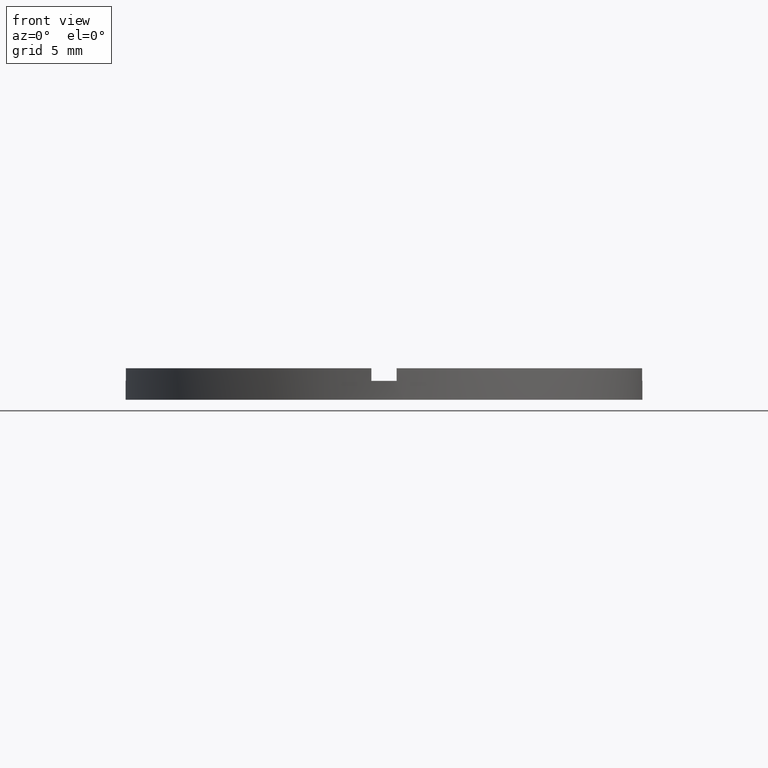
[diagram: clean part render]
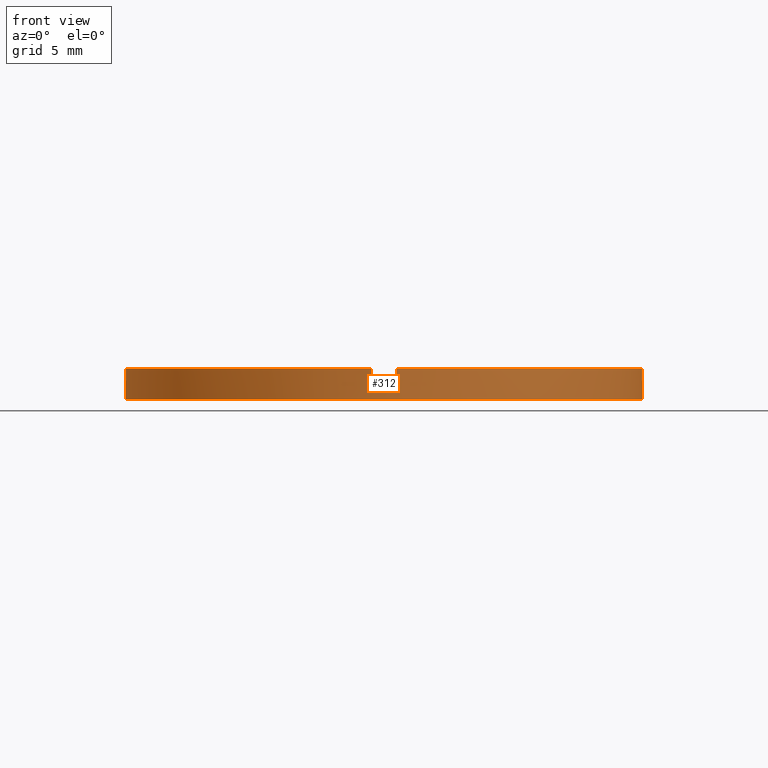
[diagram: same view with one face highlighted and labeled with its STEP entity id]
A machine part, front view. The second image highlights one B-rep face of the part: STEP entity #312.
In plain terms, the highlighted cylindrical surface (partial cylindrical patch) has radius 20.5 mm, axis along (-0, -0, -1).
Its self-contained STEP definition (entity closure, byte-faithful):
#5 = CIRCLE ( 'NONE', #503, 20.50000000000000000 ) ;
#32 = CARTESIAN_POINT ( 'NONE',  ( -20.50000000000000000, 0.000000000000000000, 2.500000000000000000 ) ) ;
#34 = DIRECTION ( 'NONE',  ( 1.000000000000000000, 0.000000000000000000, 0.000000000000000000 ) ) ;
#36 = CARTESIAN_POINT ( 'NONE',  ( 0.000000000000000000, 0.000000000000000000, 2.500000000000000000 ) ) ;
#41 = EDGE_CURVE ( 'NONE', #464, #711, #510, .T. ) ;
#66 = CARTESIAN_POINT ( 'NONE',  ( -20.47559522944326815, -1.000000000000024647, 2.500000000000000000 ) ) ;
#78 = DIRECTION ( 'NONE',  ( -0.000000000000000000, -0.000000000000000000, -1.000000000000000000 ) ) ;
#80 = EDGE_CURVE ( 'NONE', #650, #160, #5, .T. ) ;
#82 = DIRECTION ( 'NONE',  ( -0.000000000000000000, -0.000000000000000000, -1.000000000000000000 ) ) ;
#96 = VECTOR ( 'NONE', #78, 1000.000000000000000 ) ;
#114 = DIRECTION ( 'NONE',  ( -0.000000000000000000, 0.000000000000000000, 1.000000000000000000 ) ) ;
#117 = CARTESIAN_POINT ( 'NONE',  ( -20.50000000000000000, 0.000000000000000000, 1.500000000000000000 ) ) ;
#120 = AXIS2_PLACEMENT_3D ( 'NONE', #599, #462, #604 ) ;
#126 = VECTOR ( 'NONE', #691, 1000.000000000000000 ) ;
#137 = VECTOR ( 'NONE', #372, 1000.000000000000000 ) ;
#140 = CIRCLE ( 'NONE', #120, 20.50000000000000000 ) ;
#147 = ORIENTED_EDGE ( 'NONE', *, *, #581, .T. ) ;
#157 = CARTESIAN_POINT ( 'NONE',  ( 20.47559522944326460, -1.000000000000158318, 1.500000000000000000 ) ) ;
#160 = VERTEX_POINT ( 'NONE', #747 ) ;
#165 = ORIENTED_EDGE ( 'NONE', *, *, #627, .T. ) ;
#177 = ORIENTED_EDGE ( 'NONE', *, *, #333, .T. ) ;
#199 = ORIENTED_EDGE ( 'NONE', *, *, #596, .T. ) ;
#201 = CARTESIAN_POINT ( 'NONE',  ( 0.9999999999998380185, -20.47559522944327526, 2.500000000000000000 ) ) ;
#210 = EDGE_LOOP ( 'NONE', ( #526, #689, #177, #528, #439, #461, #199, #427, #165, #699, #661, #147 ) ) ;
#219 = CARTESIAN_POINT ( 'NONE',  ( 20.47559522944326460, -1.000000000000158318, 2.500000000000000000 ) ) ;
#222 = CARTESIAN_POINT ( 'NONE',  ( 0.000000000000000000, 0.000000000000000000, 1.500000000000000000 ) ) ;
#223 = CARTESIAN_POINT ( 'NONE',  ( -1.000000000000161648, -20.47559522944326105, 2.500000000000000000 ) ) ;
#231 = AXIS2_PLACEMENT_3D ( 'NONE', #36, #82, #770 ) ;
#253 = CIRCLE ( 'NONE', #270, 20.50000000000000000 ) ;
#266 = EDGE_CURVE ( 'NONE', #715, #491, #253, .T. ) ;
#270 = AXIS2_PLACEMENT_3D ( 'NONE', #562, #731, #782 ) ;
#281 = CYLINDRICAL_SURFACE ( 'NONE', #231, 20.50000000000000000 ) ;
#300 = EDGE_CURVE ( 'NONE', #409, #497, #755, .T. ) ;
#312 = ADVANCED_FACE ( 'NONE', ( #752 ), #281, .T. ) ;
#313 = AXIS2_PLACEMENT_3D ( 'NONE', #498, #586, #348 ) ;
#331 = CARTESIAN_POINT ( 'NONE',  ( -20.47559522944326815, -1.000000000000024647, 2.500000000000000000 ) ) ;
#332 = DIRECTION ( 'NONE',  ( 1.000000000000000000, 0.000000000000000000, 0.000000000000000000 ) ) ;
#333 = EDGE_CURVE ( 'NONE', #715, #403, #417, .T. ) ;
#336 = DIRECTION ( 'NONE',  ( 0.000000000000000000, 0.000000000000000000, 1.000000000000000000 ) ) ;
#348 = DIRECTION ( 'NONE',  ( 1.000000000000000000, 0.000000000000000000, 0.000000000000000000 ) ) ;
#357 = CIRCLE ( 'NONE', #666, 20.50000000000000000 ) ;
#362 = LINE ( 'NONE', #331, #622 ) ;
#368 = LINE ( 'NONE', #32, #96 ) ;
#369 = DIRECTION ( 'NONE',  ( 0.000000000000000000, 0.000000000000000000, 1.000000000000000000 ) ) ;
#372 = DIRECTION ( 'NONE',  ( -0.000000000000000000, -0.000000000000000000, -1.000000000000000000 ) ) ;
#373 = LINE ( 'NONE', #223, #386 ) ;
#386 = VECTOR ( 'NONE', #336, 1000.000000000000000 ) ;
#388 = CARTESIAN_POINT ( 'NONE',  ( -1.000000000000161204, -20.47559522944325749, 1.500000000000000000 ) ) ;
#401 = LINE ( 'NONE', #523, #137 ) ;
#403 = VERTEX_POINT ( 'NONE', #616 ) ;
#408 = VECTOR ( 'NONE', #746, 1000.000000000000000 ) ;
#409 = VERTEX_POINT ( 'NONE', #66 ) ;
#417 = LINE ( 'NONE', #219, #126 ) ;
#425 = EDGE_CURVE ( 'NONE', #491, #485, #401, .T. ) ;
#427 = ORIENTED_EDGE ( 'NONE', *, *, #300, .F. ) ;
#439 = ORIENTED_EDGE ( 'NONE', *, *, #492, .T. ) ;
#446 = VERTEX_POINT ( 'NONE', #529 ) ;
#450 = VERTEX_POINT ( 'NONE', #201 ) ;
#461 = ORIENTED_EDGE ( 'NONE', *, *, #80, .F. ) ;
#462 = DIRECTION ( 'NONE',  ( 0.000000000000000000, 0.000000000000000000, 1.000000000000000000 ) ) ;
#464 = VERTEX_POINT ( 'NONE', #117 ) ;
#481 = EDGE_CURVE ( 'NONE', #450, #403, #140, .T. ) ;
#485 = VERTEX_POINT ( 'NONE', #643 ) ;
#491 = VERTEX_POINT ( 'NONE', #567 ) ;
#492 = EDGE_CURVE ( 'NONE', #450, #160, #676, .T. ) ;
#497 = VERTEX_POINT ( 'NONE', #730 ) ;
#498 = CARTESIAN_POINT ( 'NONE',  ( 0.000000000000000000, 0.000000000000000000, 2.500000000000000000 ) ) ;
#503 = AXIS2_PLACEMENT_3D ( 'NONE', #222, #114, #34 ) ;
#510 = CIRCLE ( 'NONE', #781, 20.50000000000000000 ) ;
#523 = CARTESIAN_POINT ( 'NONE',  ( 20.50000000000000000, 2.510525938252074481E-15, 2.500000000000000000 ) ) ;
#526 = ORIENTED_EDGE ( 'NONE', *, *, #425, .F. ) ;
#528 = ORIENTED_EDGE ( 'NONE', *, *, #481, .F. ) ;
#529 = CARTESIAN_POINT ( 'NONE',  ( -20.50000000000000000, 0.000000000000000000, 0.000000000000000000 ) ) ;
#538 = CARTESIAN_POINT ( 'NONE',  ( -20.47559522944326815, -1.000000000000024647, 1.500000000000000000 ) ) ;
#541 = CARTESIAN_POINT ( 'NONE',  ( 0.000000000000000000, 0.000000000000000000, 0.000000000000000000 ) ) ;
#553 = CARTESIAN_POINT ( 'NONE',  ( 0.000000000000000000, 0.000000000000000000, 1.500000000000000000 ) ) ;
#562 = CARTESIAN_POINT ( 'NONE',  ( 0.000000000000000000, 0.000000000000000000, 1.500000000000000000 ) ) ;
#567 = CARTESIAN_POINT ( 'NONE',  ( 20.50000000000000000, 2.510525938252074481E-15, 1.500000000000000000 ) ) ;
#581 = EDGE_CURVE ( 'NONE', #446, #485, #357, .T. ) ;
#586 = DIRECTION ( 'NONE',  ( 0.000000000000000000, 0.000000000000000000, 1.000000000000000000 ) ) ;
#590 = DIRECTION ( 'NONE',  ( 0.000000000000000000, 0.000000000000000000, 1.000000000000000000 ) ) ;
#596 = EDGE_CURVE ( 'NONE', #650, #497, #373, .T. ) ;
#599 = CARTESIAN_POINT ( 'NONE',  ( 0.000000000000000000, 0.000000000000000000, 2.500000000000000000 ) ) ;
#604 = DIRECTION ( 'NONE',  ( 1.000000000000000000, 0.000000000000000000, 0.000000000000000000 ) ) ;
#616 = CARTESIAN_POINT ( 'NONE',  ( 20.47559522944326460, -1.000000000000158318, 2.500000000000000000 ) ) ;
#622 = VECTOR ( 'NONE', #773, 1000.000000000000000 ) ;
#627 = EDGE_CURVE ( 'NONE', #409, #711, #362, .T. ) ;
#643 = CARTESIAN_POINT ( 'NONE',  ( 20.50000000000000000, 2.510525938252074481E-15, 0.000000000000000000 ) ) ;
#650 = VERTEX_POINT ( 'NONE', #388 ) ;
#655 = CARTESIAN_POINT ( 'NONE',  ( 0.9999999999998384625, -20.47559522944327881, 2.500000000000000000 ) ) ;
#661 = ORIENTED_EDGE ( 'NONE', *, *, #705, .T. ) ;
#666 = AXIS2_PLACEMENT_3D ( 'NONE', #541, #369, #332 ) ;
#676 = LINE ( 'NONE', #655, #408 ) ;
#689 = ORIENTED_EDGE ( 'NONE', *, *, #266, .F. ) ;
#691 = DIRECTION ( 'NONE',  ( 0.000000000000000000, 0.000000000000000000, 1.000000000000000000 ) ) ;
#699 = ORIENTED_EDGE ( 'NONE', *, *, #41, .F. ) ;
#705 = EDGE_CURVE ( 'NONE', #464, #446, #368, .T. ) ;
#711 = VERTEX_POINT ( 'NONE', #538 ) ;
#715 = VERTEX_POINT ( 'NONE', #157 ) ;
#719 = DIRECTION ( 'NONE',  ( 1.000000000000000000, 0.000000000000000000, 0.000000000000000000 ) ) ;
#730 = CARTESIAN_POINT ( 'NONE',  ( -1.000000000000161204, -20.47559522944325749, 2.500000000000000000 ) ) ;
#731 = DIRECTION ( 'NONE',  ( 0.000000000000000000, 0.000000000000000000, 1.000000000000000000 ) ) ;
#746 = DIRECTION ( 'NONE',  ( -0.000000000000000000, -0.000000000000000000, -1.000000000000000000 ) ) ;
#747 = CARTESIAN_POINT ( 'NONE',  ( 0.9999999999998380185, -20.47559522944327526, 1.500000000000000000 ) ) ;
#752 = FACE_OUTER_BOUND ( 'NONE', #210, .T. ) ;
#755 = CIRCLE ( 'NONE', #313, 20.50000000000000000 ) ;
#770 = DIRECTION ( 'NONE',  ( -1.000000000000000000, 0.000000000000000000, 0.000000000000000000 ) ) ;
#773 = DIRECTION ( 'NONE',  ( -0.000000000000000000, -0.000000000000000000, -1.000000000000000000 ) ) ;
#781 = AXIS2_PLACEMENT_3D ( 'NONE', #553, #590, #719 ) ;
#782 = DIRECTION ( 'NONE',  ( 1.000000000000000000, 0.000000000000000000, 0.000000000000000000 ) ) ;